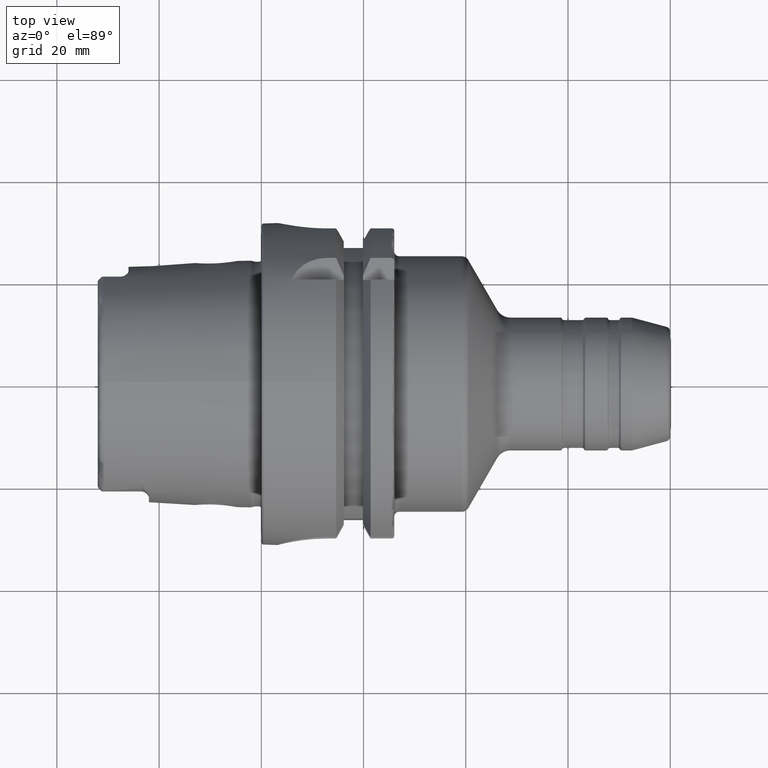
[diagram: clean part render]
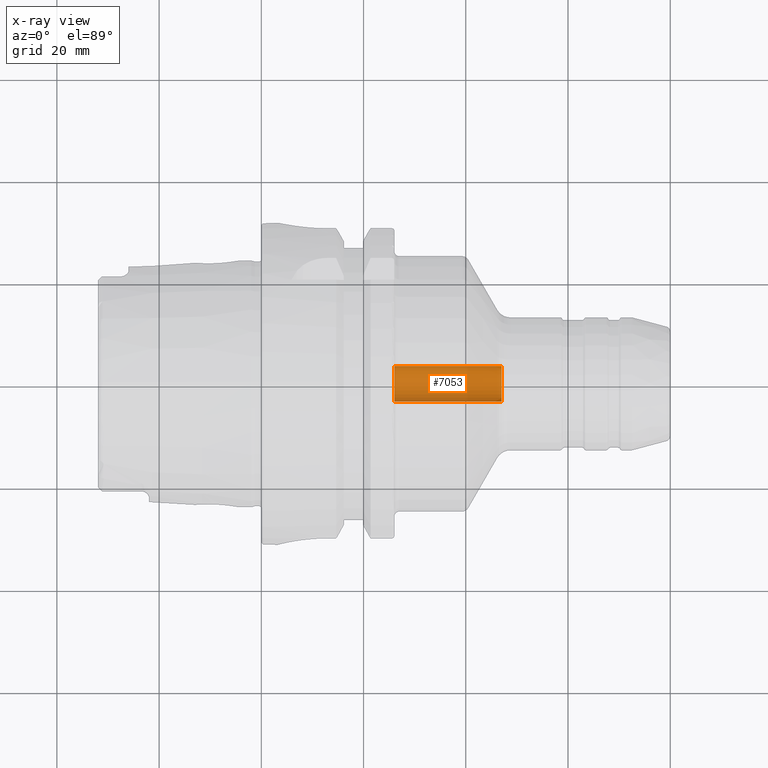
[diagram: x-ray — body ghosted, one internal face saturated and labeled with its STEP entity id]
A machine part, top view, then the same camera in x-ray: the body is ghosted and one INTERNAL B-rep face — a face not visible from any outside direction — is saturated and labeled: STEP entity #7053.
In plain terms, the highlighted cylindrical surface (edge-blend (fillet) strip) has radius 3.5 mm, axis along (1, 0, 0).
Its self-contained STEP definition (entity closure, byte-faithful):
#7002=CARTESIAN_POINT('',(2.6E1,0.E0,0.E0));
#7003=DIRECTION('',(1.E0,0.E0,0.E0));
#7004=DIRECTION('',(0.E0,-1.E0,0.E0));
#7005=AXIS2_PLACEMENT_3D('',#7002,#7003,#7004);
#7007=CARTESIAN_POINT('',(4.7E1,0.E0,0.E0));
#7008=DIRECTION('',(-1.E0,0.E0,0.E0));
#7009=DIRECTION('',(0.E0,1.E0,0.E0));
#7010=AXIS2_PLACEMENT_3D('',#7007,#7008,#7009);
#7017=DIRECTION('',(-1.E0,0.E0,0.E0));
#7018=VECTOR('',#7017,2.1E1);
#7019=CARTESIAN_POINT('',(4.7E1,-3.5E0,0.E0));
#7020=LINE('',#7019,#7018);
#7026=DIRECTION('',(-1.E0,0.E0,0.E0));
#7027=VECTOR('',#7026,2.1E1);
#7028=CARTESIAN_POINT('',(4.7E1,3.5E0,0.E0));
#7029=LINE('',#7028,#7027);
#7030=CARTESIAN_POINT('',(2.6E1,-3.5E0,0.E0));
#7031=CARTESIAN_POINT('',(2.6E1,3.5E0,0.E0));
#7032=VERTEX_POINT('',#7030);
#7033=VERTEX_POINT('',#7031);
#7034=CARTESIAN_POINT('',(4.7E1,-3.5E0,0.E0));
#7035=CARTESIAN_POINT('',(4.7E1,3.5E0,0.E0));
#7036=VERTEX_POINT('',#7034);
#7037=VERTEX_POINT('',#7035);
#7038=CARTESIAN_POINT('',(-4.771000000013E1,0.E0,0.E0));
#7039=DIRECTION('',(1.E0,0.E0,0.E0));
#7040=DIRECTION('',(0.E0,-1.E0,0.E0));
#7041=AXIS2_PLACEMENT_3D('',#7038,#7039,#7040);
#7042=CYLINDRICAL_SURFACE('',#7041,3.5E0);
#7044=ORIENTED_EDGE('',*,*,#7043,.T.);
#7046=ORIENTED_EDGE('',*,*,#7045,.F.);
#7048=ORIENTED_EDGE('',*,*,#7047,.T.);
#7050=ORIENTED_EDGE('',*,*,#7049,.T.);
#7051=EDGE_LOOP('',(#7044,#7046,#7048,#7050));
#7052=FACE_OUTER_BOUND('',#7051,.F.);
#7053=ADVANCED_FACE('',(#7052),#7042,.F.);
#7006=CIRCLE('',#7005,3.5E0);
#7011=CIRCLE('',#7010,3.5E0);
#7043=EDGE_CURVE('',#7032,#7033,#7006,.T.);
#7045=EDGE_CURVE('',#7037,#7033,#7029,.T.);
#7047=EDGE_CURVE('',#7037,#7036,#7011,.T.);
#7049=EDGE_CURVE('',#7036,#7032,#7020,.T.);